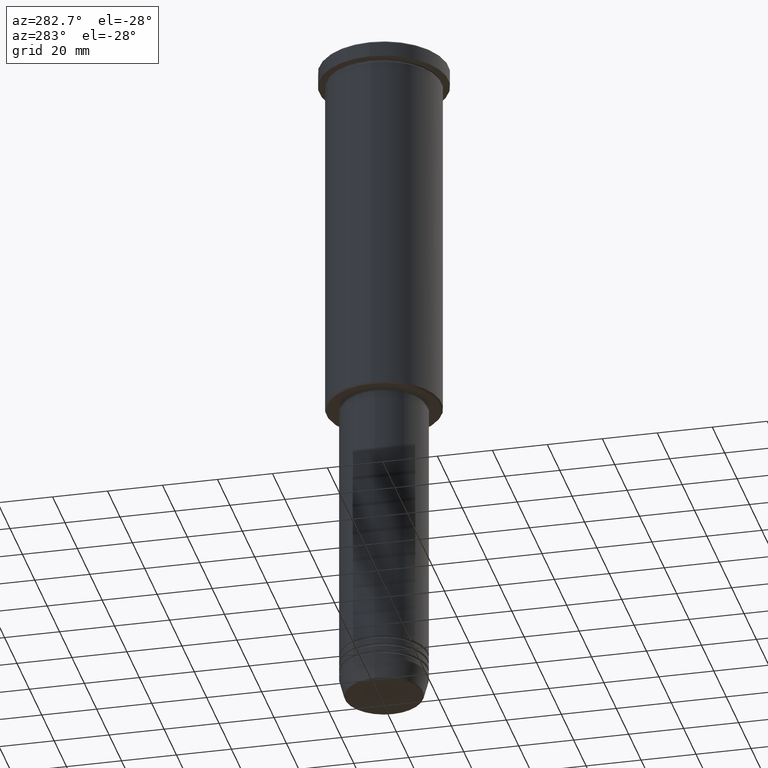
[diagram: clean part render]
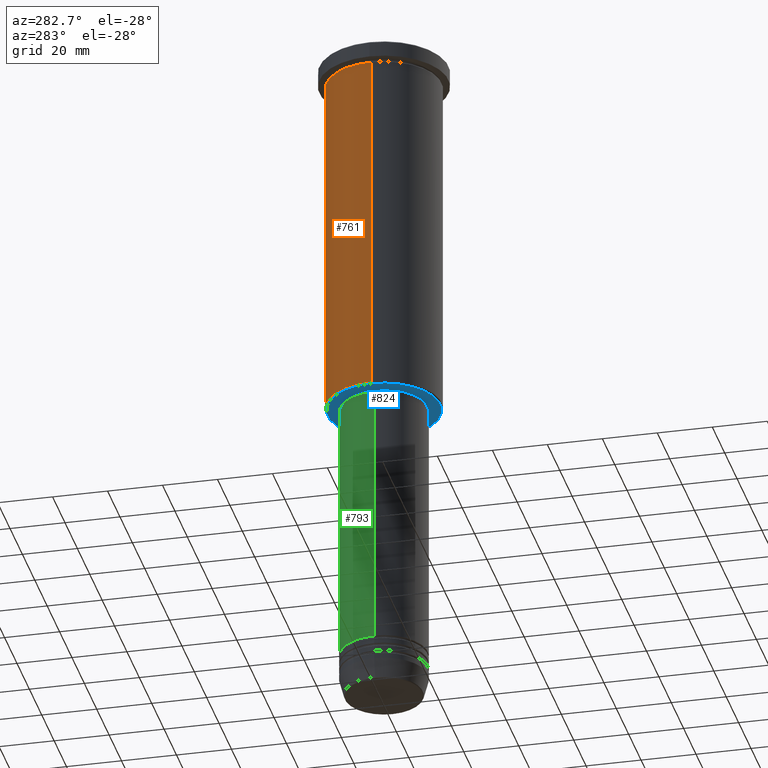
[diagram: same view with three faces highlighted in distinct colors, each labeled with its STEP entity id]
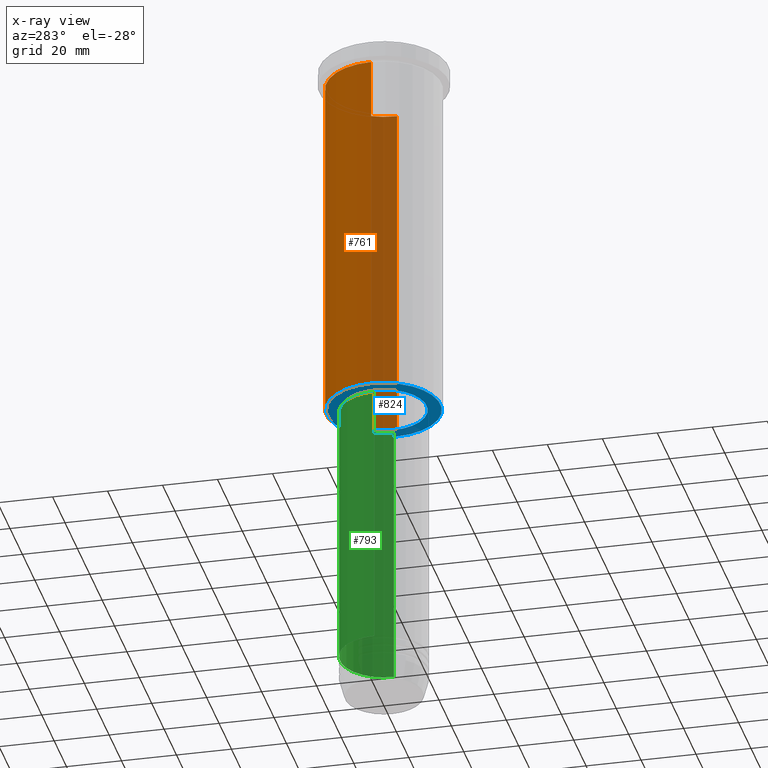
[diagram: x-ray of the same camera — body ghosted, the three highlighted faces saturated]
A machine part, auxiliary view with three faces highlighted in distinct colors.
The next image is the same camera in x-ray (body ghosted, the three faces saturated) — at least one of them is partly hidden behind the body in this view.
Their STEP definitions:

[orange] entity #761 — the highlighted cylindrical surface (partial cylindrical patch) has radius 21 mm, axis along (-0, -0, 1).
#54 = CARTESIAN_POINT ( 'NONE',  ( 0.000000000000000000, 0.000000000000000000, 0.000000000000000000 ) ) ;
#64 = EDGE_LOOP ( 'NONE', ( #562, #1094, #778, #962 ) ) ;
#94 = CARTESIAN_POINT ( 'NONE',  ( 21.00000000000000000, 0.000000000000000000, -6.999999999999994671 ) ) ;
#98 = CARTESIAN_POINT ( 'NONE',  ( -21.00000000000000000, 2.571758278209441661E-15, -135.5000000000000000 ) ) ;
#100 = EDGE_CURVE ( 'NONE', #716, #838, #430, .T. ) ;
#107 = EDGE_CURVE ( 'NONE', #497, #716, #606, .T. ) ;
#145 = CYLINDRICAL_SURFACE ( 'NONE', #437, 21.00000000000000000 ) ;
#159 = DIRECTION ( 'NONE',  ( -0.000000000000000000, -0.000000000000000000, 1.000000000000000000 ) ) ;
#165 = CARTESIAN_POINT ( 'NONE',  ( 0.000000000000000000, 0.000000000000000000, -6.999999999999994671 ) ) ;
#172 = CARTESIAN_POINT ( 'NONE',  ( 21.00000000000000000, 0.000000000000000000, -135.5000000000000000 ) ) ;
#309 = AXIS2_PLACEMENT_3D ( 'NONE', #165, #619, #543 ) ;
#329 = FACE_OUTER_BOUND ( 'NONE', #64, .T. ) ;
#357 = DIRECTION ( 'NONE',  ( -0.000000000000000000, -0.000000000000000000, 1.000000000000000000 ) ) ;
#380 = VECTOR ( 'NONE', #443, 1000.000000000000000 ) ;
#382 = CIRCLE ( 'NONE', #309, 21.00000000000000000 ) ;
#430 = LINE ( 'NONE', #1171, #380 ) ;
#437 = AXIS2_PLACEMENT_3D ( 'NONE', #54, #870, #581 ) ;
#443 = DIRECTION ( 'NONE',  ( -0.000000000000000000, -0.000000000000000000, 1.000000000000000000 ) ) ;
#488 = EDGE_CURVE ( 'NONE', #497, #708, #980, .T. ) ;
#497 = VERTEX_POINT ( 'NONE', #172 ) ;
#499 = EDGE_CURVE ( 'NONE', #708, #838, #382, .T. ) ;
#543 = DIRECTION ( 'NONE',  ( 1.000000000000000000, 0.000000000000000000, 0.000000000000000000 ) ) ;
#562 = ORIENTED_EDGE ( 'NONE', *, *, #107, .T. ) ;
#581 = DIRECTION ( 'NONE',  ( 1.000000000000000000, 0.000000000000000000, 0.000000000000000000 ) ) ;
#588 = AXIS2_PLACEMENT_3D ( 'NONE', #802, #357, #1165 ) ;
#606 = CIRCLE ( 'NONE', #588, 21.00000000000000000 ) ;
#619 = DIRECTION ( 'NONE',  ( -0.000000000000000000, -0.000000000000000000, 1.000000000000000000 ) ) ;
#672 = CARTESIAN_POINT ( 'NONE',  ( -21.00000000000000000, 2.571758278209441661E-15, -6.999999999999994671 ) ) ;
#708 = VERTEX_POINT ( 'NONE', #94 ) ;
#715 = CARTESIAN_POINT ( 'NONE',  ( 21.00000000000000000, 0.000000000000000000, 0.000000000000000000 ) ) ;
#716 = VERTEX_POINT ( 'NONE', #98 ) ;
#761 = ADVANCED_FACE ( 'NONE', ( #329 ), #145, .T. ) ;
#778 = ORIENTED_EDGE ( 'NONE', *, *, #499, .F. ) ;
#802 = CARTESIAN_POINT ( 'NONE',  ( 0.000000000000000000, 0.000000000000000000, -135.5000000000000000 ) ) ;
#838 = VERTEX_POINT ( 'NONE', #672 ) ;
#870 = DIRECTION ( 'NONE',  ( -0.000000000000000000, -0.000000000000000000, 1.000000000000000000 ) ) ;
#962 = ORIENTED_EDGE ( 'NONE', *, *, #488, .F. ) ;
#980 = LINE ( 'NONE', #715, #1179 ) ;
#1094 = ORIENTED_EDGE ( 'NONE', *, *, #100, .T. ) ;
#1165 = DIRECTION ( 'NONE',  ( -1.000000000000000000, 0.000000000000000000, 0.000000000000000000 ) ) ;
#1171 = CARTESIAN_POINT ( 'NONE',  ( -21.00000000000000000, 2.571758278209441661E-15, 0.000000000000000000 ) ) ;
#1179 = VECTOR ( 'NONE', #159, 1000.000000000000000 ) ;

[blue] entity #824 — the highlighted planar face has unit normal (0, 0, -1).
#24 = EDGE_CURVE ( 'NONE', #974, #1090, #982, .T. ) ;
#128 = DIRECTION ( 'NONE',  ( 1.000000000000000000, 0.000000000000000000, 0.000000000000000000 ) ) ;
#133 = ORIENTED_EDGE ( 'NONE', *, *, #670, .T. ) ;
#192 = CARTESIAN_POINT ( 'NONE',  ( -15.50000000000000000, 1.898202538678397557E-15, -136.0000000000000000 ) ) ;
#231 = AXIS2_PLACEMENT_3D ( 'NONE', #743, #657, #579 ) ;
#258 = CARTESIAN_POINT ( 'NONE',  ( -20.49999999999998934, 2.541142108230757480E-15, -136.0000000000000000 ) ) ;
#276 = DIRECTION ( 'NONE',  ( -1.000000000000000000, 0.000000000000000000, 0.000000000000000000 ) ) ;
#277 = DIRECTION ( 'NONE',  ( 1.000000000000000000, 0.000000000000000000, 0.000000000000000000 ) ) ;
#287 = CIRCLE ( 'NONE', #231, 20.49999999999998934 ) ;
#312 = DIRECTION ( 'NONE',  ( 0.000000000000000000, 0.000000000000000000, -1.000000000000000000 ) ) ;
#321 = DIRECTION ( 'NONE',  ( -1.000000000000000000, 0.000000000000000000, -0.000000000000000000 ) ) ;
#346 = AXIS2_PLACEMENT_3D ( 'NONE', #379, #368, #276 ) ;
#350 = CARTESIAN_POINT ( 'NONE',  ( 0.000000000000000000, 0.000000000000000000, -136.0000000000000000 ) ) ;
#354 = CARTESIAN_POINT ( 'NONE',  ( 15.50000000000000000, 0.000000000000000000, -136.0000000000000000 ) ) ;
#368 = DIRECTION ( 'NONE',  ( 0.000000000000000000, 0.000000000000000000, -1.000000000000000000 ) ) ;
#379 = CARTESIAN_POINT ( 'NONE',  ( 0.000000000000000000, 0.000000000000000000, -136.0000000000000000 ) ) ;
#396 = FACE_OUTER_BOUND ( 'NONE', #561, .T. ) ;
#532 = ORIENTED_EDGE ( 'NONE', *, *, #24, .T. ) ;
#561 = EDGE_LOOP ( 'NONE', ( #133, #748 ) ) ;
#579 = DIRECTION ( 'NONE',  ( -1.000000000000000000, 0.000000000000000000, 0.000000000000000000 ) ) ;
#585 = DIRECTION ( 'NONE',  ( -0.000000000000000000, -0.000000000000000000, 1.000000000000000000 ) ) ;
#608 = AXIS2_PLACEMENT_3D ( 'NONE', #687, #312, #321 ) ;
#620 = EDGE_CURVE ( 'NONE', #952, #804, #624, .T. ) ;
#624 = CIRCLE ( 'NONE', #346, 20.49999999999998934 ) ;
#634 = DIRECTION ( 'NONE',  ( -0.000000000000000000, -0.000000000000000000, 1.000000000000000000 ) ) ;
#657 = DIRECTION ( 'NONE',  ( 0.000000000000000000, 0.000000000000000000, -1.000000000000000000 ) ) ;
#670 = EDGE_CURVE ( 'NONE', #804, #952, #287, .T. ) ;
#680 = AXIS2_PLACEMENT_3D ( 'NONE', #350, #634, #277 ) ;
#687 = CARTESIAN_POINT ( 'NONE',  ( 0.000000000000000000, 21.00000000000000000, -136.0000000000000000 ) ) ;
#743 = CARTESIAN_POINT ( 'NONE',  ( 0.000000000000000000, 0.000000000000000000, -136.0000000000000000 ) ) ;
#748 = ORIENTED_EDGE ( 'NONE', *, *, #620, .T. ) ;
#779 = AXIS2_PLACEMENT_3D ( 'NONE', #1031, #585, #128 ) ;
#782 = EDGE_CURVE ( 'NONE', #1090, #974, #1083, .T. ) ;
#804 = VERTEX_POINT ( 'NONE', #1035 ) ;
#824 = ADVANCED_FACE ( 'NONE', ( #396, #1133 ), #852, .T. ) ;
#852 = PLANE ( 'NONE',  #608 ) ;
#881 = EDGE_LOOP ( 'NONE', ( #532, #942 ) ) ;
#942 = ORIENTED_EDGE ( 'NONE', *, *, #782, .T. ) ;
#952 = VERTEX_POINT ( 'NONE', #258 ) ;
#974 = VERTEX_POINT ( 'NONE', #354 ) ;
#982 = CIRCLE ( 'NONE', #680, 15.50000000000000000 ) ;
#1031 = CARTESIAN_POINT ( 'NONE',  ( 0.000000000000000000, 0.000000000000000000, -136.0000000000000000 ) ) ;
#1035 = CARTESIAN_POINT ( 'NONE',  ( 20.49999999999998934, 0.000000000000000000, -136.0000000000000000 ) ) ;
#1083 = CIRCLE ( 'NONE', #779, 15.50000000000000000 ) ;
#1090 = VERTEX_POINT ( 'NONE', #192 ) ;
#1133 = FACE_BOUND ( 'NONE', #881, .T. ) ;

[green] entity #793 — the highlighted cylindrical surface (partial cylindrical patch) has radius 16 mm, axis along (-0, -0, 1).
#11 = CARTESIAN_POINT ( 'NONE',  ( 16.00000000000000000, 0.000000000000000000, -137.0000000000000000 ) ) ;
#29 = CYLINDRICAL_SURFACE ( 'NONE', #931, 16.00000000000000000 ) ;
#44 = EDGE_LOOP ( 'NONE', ( #551, #770, #573, #811 ) ) ;
#86 = LINE ( 'NONE', #452, #106 ) ;
#106 = VECTOR ( 'NONE', #815, 1000.000000000000000 ) ;
#140 = DIRECTION ( 'NONE',  ( -0.000000000000000000, -0.000000000000000000, 1.000000000000000000 ) ) ;
#148 = VECTOR ( 'NONE', #843, 1000.000000000000000 ) ;
#196 = VERTEX_POINT ( 'NONE', #1000 ) ;
#219 = VERTEX_POINT ( 'NONE', #11 ) ;
#225 = DIRECTION ( 'NONE',  ( 1.000000000000000000, 0.000000000000000000, 0.000000000000000000 ) ) ;
#264 = CIRCLE ( 'NONE', #645, 16.00000000000000000 ) ;
#269 = VERTEX_POINT ( 'NONE', #851 ) ;
#326 = CARTESIAN_POINT ( 'NONE',  ( 16.00000000000000000, 0.000000000000000000, -235.0000000000000000 ) ) ;
#371 = EDGE_CURVE ( 'NONE', #219, #269, #264, .T. ) ;
#412 = CARTESIAN_POINT ( 'NONE',  ( 0.000000000000000000, 0.000000000000000000, -137.0000000000000000 ) ) ;
#452 = CARTESIAN_POINT ( 'NONE',  ( 16.00000000000000000, 0.000000000000000000, 0.000000000000000000 ) ) ;
#502 = DIRECTION ( 'NONE',  ( -0.000000000000000000, -0.000000000000000000, 1.000000000000000000 ) ) ;
#525 = EDGE_CURVE ( 'NONE', #1153, #219, #86, .T. ) ;
#551 = ORIENTED_EDGE ( 'NONE', *, *, #744, .T. ) ;
#557 = LINE ( 'NONE', #1098, #148 ) ;
#573 = ORIENTED_EDGE ( 'NONE', *, *, #371, .F. ) ;
#645 = AXIS2_PLACEMENT_3D ( 'NONE', #412, #502, #225 ) ;
#647 = CIRCLE ( 'NONE', #1122, 16.00000000000000000 ) ;
#690 = EDGE_CURVE ( 'NONE', #196, #269, #557, .T. ) ;
#692 = FACE_OUTER_BOUND ( 'NONE', #44, .T. ) ;
#744 = EDGE_CURVE ( 'NONE', #1153, #196, #647, .T. ) ;
#768 = DIRECTION ( 'NONE',  ( -0.000000000000000000, -0.000000000000000000, 1.000000000000000000 ) ) ;
#770 = ORIENTED_EDGE ( 'NONE', *, *, #690, .T. ) ;
#793 = ADVANCED_FACE ( 'NONE', ( #692 ), #29, .T. ) ;
#811 = ORIENTED_EDGE ( 'NONE', *, *, #525, .F. ) ;
#815 = DIRECTION ( 'NONE',  ( -0.000000000000000000, -0.000000000000000000, 1.000000000000000000 ) ) ;
#843 = DIRECTION ( 'NONE',  ( -0.000000000000000000, -0.000000000000000000, 1.000000000000000000 ) ) ;
#851 = CARTESIAN_POINT ( 'NONE',  ( -16.00000000000000000, 1.959434878635765131E-15, -137.0000000000000000 ) ) ;
#931 = AXIS2_PLACEMENT_3D ( 'NONE', #1140, #768, #954 ) ;
#945 = DIRECTION ( 'NONE',  ( 1.000000000000000000, 0.000000000000000000, 0.000000000000000000 ) ) ;
#954 = DIRECTION ( 'NONE',  ( 1.000000000000000000, 0.000000000000000000, 0.000000000000000000 ) ) ;
#1000 = CARTESIAN_POINT ( 'NONE',  ( -16.00000000000000000, 1.959434878635765131E-15, -235.0000000000000000 ) ) ;
#1043 = CARTESIAN_POINT ( 'NONE',  ( 0.000000000000000000, 0.000000000000000000, -235.0000000000000000 ) ) ;
#1098 = CARTESIAN_POINT ( 'NONE',  ( -16.00000000000000000, 1.959434878635765131E-15, 0.000000000000000000 ) ) ;
#1122 = AXIS2_PLACEMENT_3D ( 'NONE', #1043, #140, #945 ) ;
#1140 = CARTESIAN_POINT ( 'NONE',  ( 0.000000000000000000, 0.000000000000000000, 0.000000000000000000 ) ) ;
#1153 = VERTEX_POINT ( 'NONE', #326 ) ;